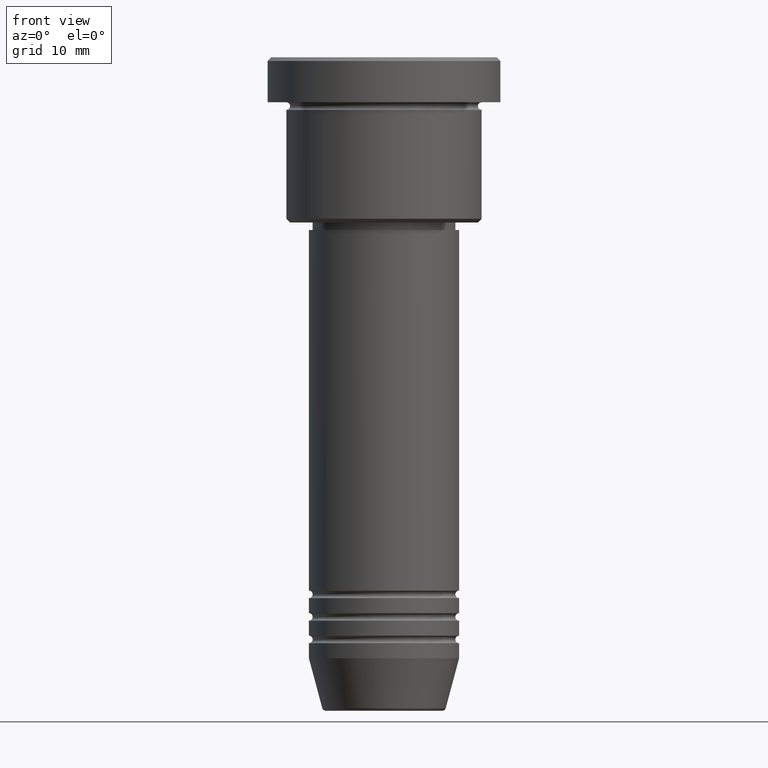
[diagram: clean part render]
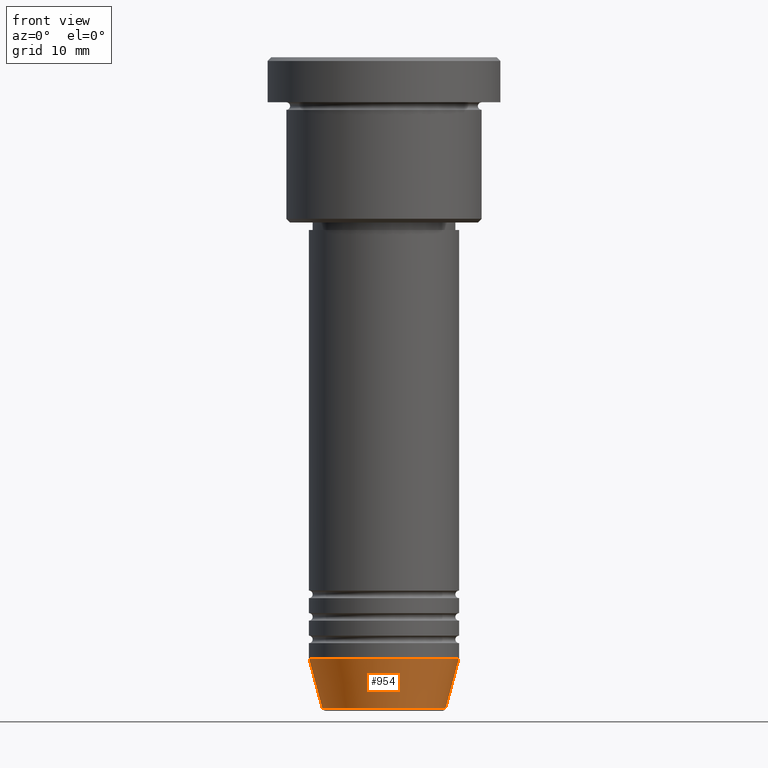
[diagram: same view with one face highlighted and labeled with its STEP entity id]
A machine part, front view. The second image highlights one B-rep face of the part: STEP entity #954.
In plain terms, the highlighted conical surface has half-angle 15 deg.
Its self-contained STEP definition (entity closure, byte-faithful):
#18 = FACE_OUTER_BOUND ( 'NONE', #983, .T. ) ;
#55 = CARTESIAN_POINT ( 'NONE',  ( 10.00000000000000000, 0.000000000000000000, -79.99999999999998579 ) ) ;
#57 = EDGE_CURVE ( 'NONE', #386, #583, #965, .T. ) ;
#61 = ORIENTED_EDGE ( 'NONE', *, *, #57, .T. ) ;
#63 = CARTESIAN_POINT ( 'NONE',  ( -10.00000000000000000, 1.224646799147353256E-15, -79.99999999999998579 ) ) ;
#71 = DIRECTION ( 'NONE',  ( -0.000000000000000000, -0.000000000000000000, 1.000000000000000000 ) ) ;
#95 = CARTESIAN_POINT ( 'NONE',  ( -8.223655072137187716, 1.115877042642911856E-15, -86.62940952255125637 ) ) ;
#101 = CARTESIAN_POINT ( 'NONE',  ( -10.00000000000000000, 1.224646799147353256E-15, -79.99999999999998579 ) ) ;
#117 = CARTESIAN_POINT ( 'NONE',  ( 8.223655072137187716, 0.000000000000000000, -86.62940952255125637 ) ) ;
#144 = CIRCLE ( 'NONE', #440, 8.223655072137187716 ) ;
#165 = LINE ( 'NONE', #63, #902 ) ;
#269 = AXIS2_PLACEMENT_3D ( 'NONE', #1062, #71, #703 ) ;
#284 = VERTEX_POINT ( 'NONE', #101 ) ;
#285 = DIRECTION ( 'NONE',  ( 1.000000000000000000, 0.000000000000000000, 0.000000000000000000 ) ) ;
#307 = DIRECTION ( 'NONE',  ( 0.2588190451025213501, 0.000000000000000000, 0.9659258262890680902 ) ) ;
#341 = VERTEX_POINT ( 'NONE', #95 ) ;
#374 = CARTESIAN_POINT ( 'NONE',  ( 0.000000000000000000, 0.000000000000000000, -79.99999999999998579 ) ) ;
#386 = VERTEX_POINT ( 'NONE', #117 ) ;
#440 = AXIS2_PLACEMENT_3D ( 'NONE', #941, #856, #481 ) ;
#449 = ORIENTED_EDGE ( 'NONE', *, *, #488, .F. ) ;
#481 = DIRECTION ( 'NONE',  ( 1.000000000000000000, 0.000000000000000000, 0.000000000000000000 ) ) ;
#488 = EDGE_CURVE ( 'NONE', #341, #284, #165, .T. ) ;
#495 = VECTOR ( 'NONE', #307, 1000.000000000000000 ) ;
#583 = VERTEX_POINT ( 'NONE', #55 ) ;
#608 = EDGE_CURVE ( 'NONE', #284, #583, #788, .T. ) ;
#703 = DIRECTION ( 'NONE',  ( 1.000000000000000000, 0.000000000000000000, 0.000000000000000000 ) ) ;
#738 = DIRECTION ( 'NONE',  ( -0.000000000000000000, -0.000000000000000000, 1.000000000000000000 ) ) ;
#779 = DIRECTION ( 'NONE',  ( -0.2588190451025213501, 3.169619151431772337E-17, 0.9659258262890680902 ) ) ;
#788 = CIRCLE ( 'NONE', #269, 10.00000000000000000 ) ;
#822 = EDGE_CURVE ( 'NONE', #341, #386, #144, .T. ) ;
#856 = DIRECTION ( 'NONE',  ( -0.000000000000000000, -0.000000000000000000, 1.000000000000000000 ) ) ;
#902 = VECTOR ( 'NONE', #779, 1000.000000000000000 ) ;
#926 = AXIS2_PLACEMENT_3D ( 'NONE', #374, #738, #285 ) ;
#941 = CARTESIAN_POINT ( 'NONE',  ( 0.000000000000000000, 0.000000000000000000, -86.62940952255125637 ) ) ;
#954 = ADVANCED_FACE ( 'NONE', ( #18 ), #1140, .T. ) ;
#965 = LINE ( 'NONE', #1141, #495 ) ;
#983 = EDGE_LOOP ( 'NONE', ( #449, #1103, #61, #1123 ) ) ;
#1062 = CARTESIAN_POINT ( 'NONE',  ( 0.000000000000000000, 0.000000000000000000, -79.99999999999998579 ) ) ;
#1103 = ORIENTED_EDGE ( 'NONE', *, *, #822, .T. ) ;
#1123 = ORIENTED_EDGE ( 'NONE', *, *, #608, .F. ) ;
#1140 = CONICAL_SURFACE ( 'NONE', #926, 10.00000000000000000, 0.2617993877991500740 ) ;
#1141 = CARTESIAN_POINT ( 'NONE',  ( 10.00000000000000000, 0.000000000000000000, -79.99999999999998579 ) ) ;